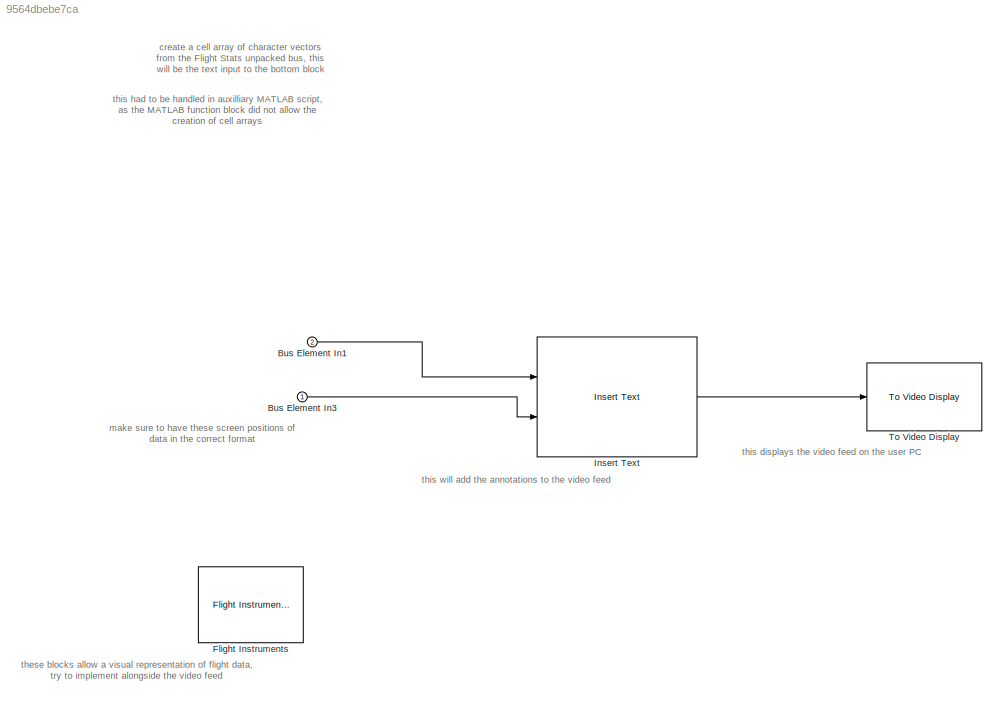
MODEL slx_9564dbebe7ca
KIND model
CONFIG AbsTol = auto
CONFIG EnableMultiTasking = off
CONFIG FixedStep = auto
CONFIG MaxStep = auto
CONFIG MinStep = auto
CONFIG RelTol = 1e-3
CONFIG SampleTimeConstraint = Unconstrained
CONFIG SolverName = VariableStepAuto
CONFIG StartTime = 0.0
CONFIG StopTime = 10.0
BLOCK [Inport] Bus Element In1
  Port = 2
BLOCK [Inport] Bus Element In3
BLOCK [Reference] Flight Instruments  REF=aerolibv1/Flight Instruments
  Ports = []
  SourceBlock = aerolibv1/Flight Instruments
  SourceProductBaseCode = AE
BLOCK [Reference] Insert Text  REF=visiontextngfix/Insert Text
  Ports = [2, 1]
  SourceBlock = visiontextngfix/Insert Text
  SourceProductBaseCode = VP
  SourceType = Insert Text
BLOCK [Reference] To Video Display  REF=visionsinks/To Video Display
  Ports = [1]
  SourceBlock = visionsinks/To Video Display
  SourceProductBaseCode = VP
  SourceType = To Video Display
ANNOTATION (root): create a cell array of character vectors from the Flight Stats unpacked bus, this will be the text input to the bottom block
ANNOTATION (root): make sure to have these screen positions of data in the correct format
ANNOTATION (root): these blocks allow a visual representation of flight data, try to implement alongside the video feed
ANNOTATION (root): this displays the video feed on the user PC
ANNOTATION (root): this had to be handled in auxilliary MATLAB script, as the MATLAB function block did not allow the creation of cell arrays
ANNOTATION (root): this will add the annotations to the video feed
LINE Bus Element In1:1 -> Insert Text:1
LINE Bus Element In3:1 -> Insert Text:2
LINE Insert Text:1 -> To Video Display:1
